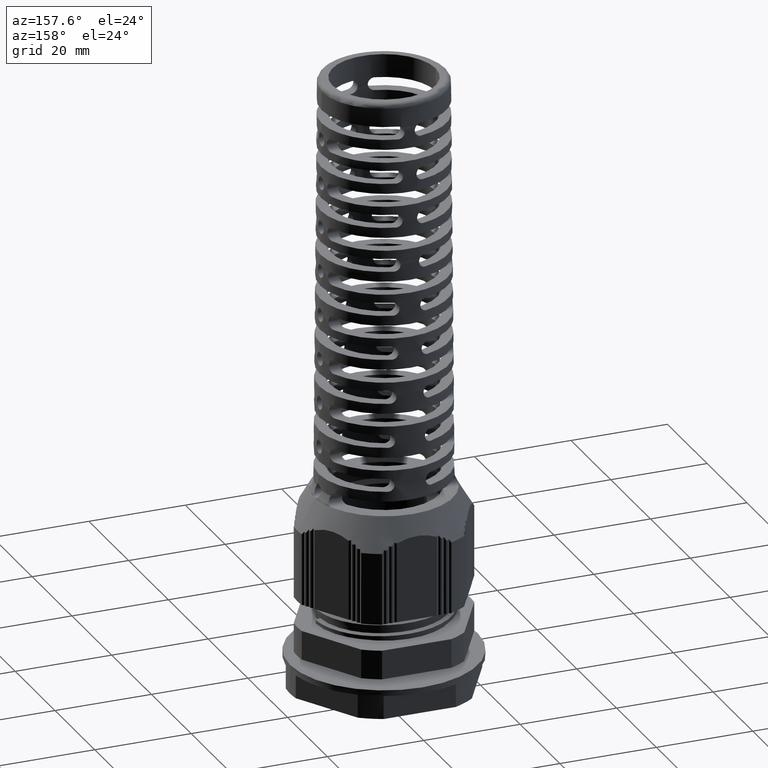
[diagram: clean part render]
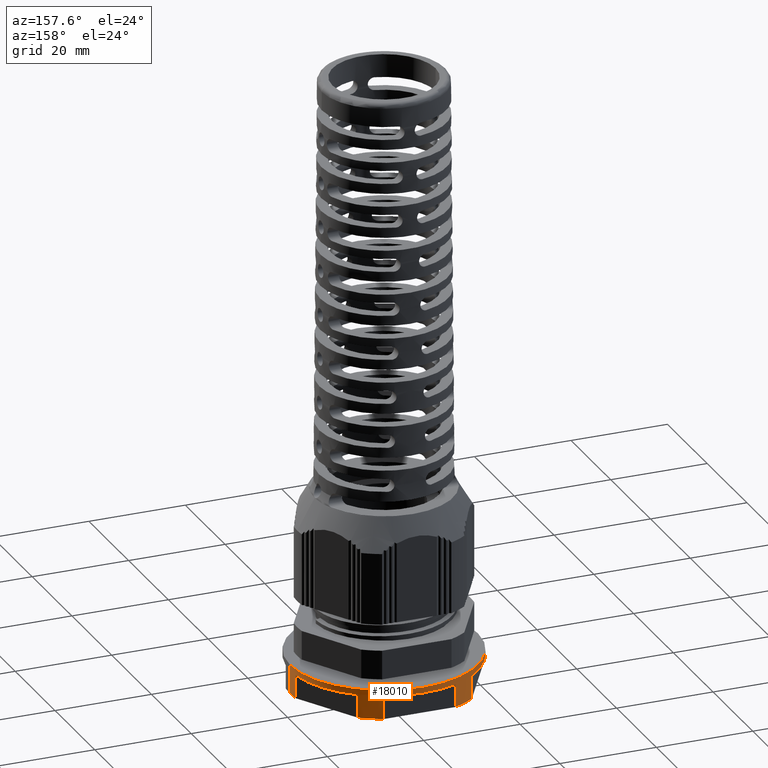
[diagram: same view with one face highlighted and labeled with its STEP entity id]
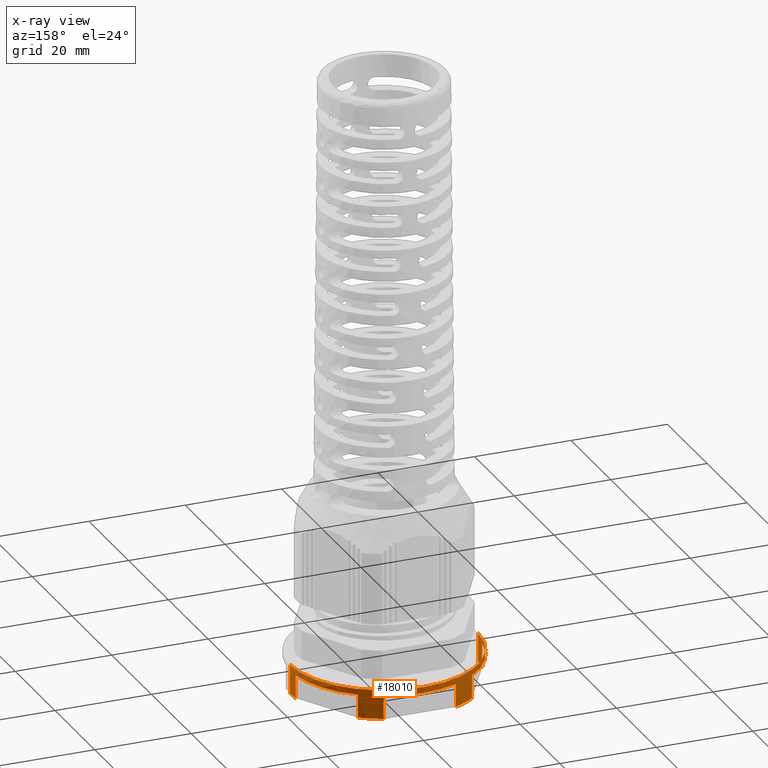
[diagram: x-ray of the same camera — body ghosted, the highlighted face saturated]
A machine part, auxiliary view. The second image highlights one B-rep face of the part: STEP entity #18010.
The next image is the same camera in x-ray: the body ghosted, the highlighted face saturated — about 0% of this face is hidden behind the body in this view.
In plain terms, the highlighted cylindrical surface (partial cylindrical patch) has radius 19.5 mm, axis along (0, 0, 1).
Its self-contained STEP definition (entity closure, byte-faithful):
#3773 = EDGE_LOOP ( 'NONE', ( #7299, #7276, #7327, #7319, #7297, #7293, #7322, #7292, #7284, #7318, #7260, #7331, #7273, #7268, #7312, #7301 ) ) ;
#6485 = DIRECTION ( 'NONE',  ( 0.0000000000000000000, 0.0000000000000000000, 1.000000000000000000 ) ) ;
#6489 = LINE ( 'NONE', #6490, #26515 ) ;
#6490 = CARTESIAN_POINT ( 'NONE',  ( 7.500000000000327700, 18.00000000000001400, 2.832912421834272300 ) ) ;
#6491 = DIRECTION ( 'NONE',  ( 0.0000000000000000000, 0.0000000000000000000, 1.000000000000000000 ) ) ;
#6508 = DIRECTION ( 'NONE',  ( 0.0000000000000000000, 0.0000000000000000000, 1.000000000000000000 ) ) ;
#6509 = DIRECTION ( 'NONE',  ( 1.000000000000000000, 0.0000000000000000000, 0.0000000000000000000 ) ) ;
#6511 = CARTESIAN_POINT ( 'NONE',  ( 0.0000000000000000000, 0.0000000000000000000, 7.632912421834270800 ) ) ;
#6536 = LINE ( 'NONE', #6537, #26477 ) ;
#6537 = CARTESIAN_POINT ( 'NONE',  ( 19.50000000000001400, 0.0000000000000000000, 2.832912421834272300 ) ) ;
#7102 = VERTEX_POINT ( 'NONE', #14411 ) ;
#7112 = VERTEX_POINT ( 'NONE', #14148 ) ;
#7114 = VERTEX_POINT ( 'NONE', #14149 ) ;
#7117 = VERTEX_POINT ( 'NONE', #14152 ) ;
#7120 = VERTEX_POINT ( 'NONE', #14162 ) ;
#7121 = VERTEX_POINT ( 'NONE', #14155 ) ;
#7126 = VERTEX_POINT ( 'NONE', #14164 ) ;
#7129 = VERTEX_POINT ( 'NONE', #14161 ) ;
#7130 = VERTEX_POINT ( 'NONE', #14165 ) ;
#7133 = VERTEX_POINT ( 'NONE', #14166 ) ;
#7141 = VERTEX_POINT ( 'NONE', #14173 ) ;
#7144 = VERTEX_POINT ( 'NONE', #14170 ) ;
#7145 = VERTEX_POINT ( 'NONE', #14181 ) ;
#7149 = VERTEX_POINT ( 'NONE', #14183 ) ;
#7150 = VERTEX_POINT ( 'NONE', #14205 ) ;
#7159 = VERTEX_POINT ( 'NONE', #14196 ) ;
#7260 = ORIENTED_EDGE ( 'NONE', *, *, #10006, .T. ) ;
#7268 = ORIENTED_EDGE ( 'NONE', *, *, #10009, .T. ) ;
#7273 = ORIENTED_EDGE ( 'NONE', *, *, #9974, .T. ) ;
#7276 = ORIENTED_EDGE ( 'NONE', *, *, #9976, .T. ) ;
#7284 = ORIENTED_EDGE ( 'NONE', *, *, #10004, .T. ) ;
#7292 = ORIENTED_EDGE ( 'NONE', *, *, #9967, .T. ) ;
#7293 = ORIENTED_EDGE ( 'NONE', *, *, #9992, .T. ) ;
#7297 = ORIENTED_EDGE ( 'NONE', *, *, #9920, .T. ) ;
#7299 = ORIENTED_EDGE ( 'NONE', *, *, #9897, .T. ) ;
#7301 = ORIENTED_EDGE ( 'NONE', *, *, #9944, .T. ) ;
#7312 = ORIENTED_EDGE ( 'NONE', *, *, #10002, .T. ) ;
#7318 = ORIENTED_EDGE ( 'NONE', *, *, #9931, .T. ) ;
#7319 = ORIENTED_EDGE ( 'NONE', *, *, #9929, .F. ) ;
#7322 = ORIENTED_EDGE ( 'NONE', *, *, #9936, .T. ) ;
#7327 = ORIENTED_EDGE ( 'NONE', *, *, #9917, .F. ) ;
#7331 = ORIENTED_EDGE ( 'NONE', *, *, #9986, .T. ) ;
#8178 = CARTESIAN_POINT ( 'NONE',  ( -19.33845726812007400, 2.504809471616401800, 7.632912421834270800 ) ) ;
#8186 = LINE ( 'NONE', #8178, #26478 ) ;
#8214 = DIRECTION ( 'NONE',  ( -0.0000000000000000000, -0.0000000000000000000, -1.000000000000000000 ) ) ;
#9897 = EDGE_CURVE ( 'NONE', #7112, #7126, #26417, .T. ) ;
#9917 = EDGE_CURVE ( 'NONE', #7121, #7159, #26511, .T. ) ;
#9920 = EDGE_CURVE ( 'NONE', #7130, #7144, #26497, .T. ) ;
#9929 = EDGE_CURVE ( 'NONE', #7130, #7121, #6536, .T. ) ;
#9931 = EDGE_CURVE ( 'NONE', #7150, #7117, #6489, .T. ) ;
#9936 = EDGE_CURVE ( 'NONE', #7149, #7102, #26498, .T. ) ;
#9944 = EDGE_CURVE ( 'NONE', #7141, #7112, #8186, .T. ) ;
#9967 = EDGE_CURVE ( 'NONE', #7102, #7145, #12628, .T. ) ;
#9974 = EDGE_CURVE ( 'NONE', #7129, #7114, #26599, .T. ) ;
#9976 = EDGE_CURVE ( 'NONE', #7126, #7159, #12655, .T. ) ;
#9986 = EDGE_CURVE ( 'NONE', #7133, #7129, #12797, .T. ) ;
#9992 = EDGE_CURVE ( 'NONE', #7144, #7149, #12826, .T. ) ;
#10002 = EDGE_CURVE ( 'NONE', #7120, #7141, #26563, .T. ) ;
#10004 = EDGE_CURVE ( 'NONE', #7145, #7150, #26573, .T. ) ;
#10006 = EDGE_CURVE ( 'NONE', #7117, #7133, #26578, .T. ) ;
#10009 = EDGE_CURVE ( 'NONE', #7114, #7120, #12993, .T. ) ;
#11289 = CARTESIAN_POINT ( 'NONE',  ( 0.0000000000000000000, 0.0000000000000000000, 2.832912421834272300 ) ) ;
#11332 = DIRECTION ( 'NONE',  ( 1.000000000000000000, 0.0000000000000000000, 0.0000000000000000000 ) ) ;
#11349 = CARTESIAN_POINT ( 'NONE',  ( 0.0000000000000000000, 0.0000000000000000000, 8.832912421834270900 ) ) ;
#11353 = DIRECTION ( 'NONE',  ( 0.0000000000000000000, 0.0000000000000000000, 1.000000000000000000 ) ) ;
#11367 = DIRECTION ( 'NONE',  ( 0.0000000000000000000, 0.0000000000000000000, 1.000000000000000000 ) ) ;
#11372 = DIRECTION ( 'NONE',  ( 1.000000000000000000, 0.0000000000000000000, 0.0000000000000000000 ) ) ;
#12628 = LINE ( 'NONE', #12631, #26535 ) ;
#12631 = CARTESIAN_POINT ( 'NONE',  ( 11.83845726811970200, 15.49519052838361500, 7.632912421834270800 ) ) ;
#12647 = DIRECTION ( 'NONE',  ( -0.0000000000000000000, -0.0000000000000000000, -1.000000000000000000 ) ) ;
#12655 = LINE ( 'NONE', #12675, #26561 ) ;
#12659 = DIRECTION ( 'NONE',  ( 1.000000000000000000, 0.0000000000000000000, 0.0000000000000000000 ) ) ;
#12660 = DIRECTION ( 'NONE',  ( 0.0000000000000000000, 0.0000000000000000000, 1.000000000000000000 ) ) ;
#12661 = CARTESIAN_POINT ( 'NONE',  ( 0.0000000000000000000, 0.0000000000000000000, 2.832912421834272300 ) ) ;
#12675 = CARTESIAN_POINT ( 'NONE',  ( -19.50000000000001400, 2.388061258337340500E-015, 2.832912421834272300 ) ) ;
#12724 = DIRECTION ( 'NONE',  ( 0.0000000000000000000, 0.0000000000000000000, 1.000000000000000000 ) ) ;
#12790 = DIRECTION ( 'NONE',  ( -0.0000000000000000000, -0.0000000000000000000, -1.000000000000000000 ) ) ;
#12797 = LINE ( 'NONE', #12805, #26571 ) ;
#12805 = CARTESIAN_POINT ( 'NONE',  ( -7.500000000000330400, 18.00000000000001400, 7.632912421834270800 ) ) ;
#12819 = CARTESIAN_POINT ( 'NONE',  ( 19.33845726812008100, 2.504809471616381800, 2.832912421834272300 ) ) ;
#12820 = DIRECTION ( 'NONE',  ( 0.0000000000000000000, 0.0000000000000000000, 1.000000000000000000 ) ) ;
#12826 = LINE ( 'NONE', #12819, #26564 ) ;
#12871 = CARTESIAN_POINT ( 'NONE',  ( 0.0000000000000000000, 0.0000000000000000000, 7.632912421834270800 ) ) ;
#12873 = CARTESIAN_POINT ( 'NONE',  ( 0.0000000000000000000, 0.0000000000000000000, 2.832912421834272300 ) ) ;
#12877 = CARTESIAN_POINT ( 'NONE',  ( 0.0000000000000000000, 0.0000000000000000000, 7.632912421834270800 ) ) ;
#12880 = DIRECTION ( 'NONE',  ( 0.0000000000000000000, 0.0000000000000000000, 1.000000000000000000 ) ) ;
#12882 = DIRECTION ( 'NONE',  ( 0.0000000000000000000, 0.0000000000000000000, 1.000000000000000000 ) ) ;
#12888 = DIRECTION ( 'NONE',  ( 1.000000000000000000, 0.0000000000000000000, 0.0000000000000000000 ) ) ;
#12889 = DIRECTION ( 'NONE',  ( 1.000000000000000000, 0.0000000000000000000, 0.0000000000000000000 ) ) ;
#12891 = DIRECTION ( 'NONE',  ( 1.000000000000000000, 0.0000000000000000000, 0.0000000000000000000 ) ) ;
#12892 = DIRECTION ( 'NONE',  ( 0.0000000000000000000, 0.0000000000000000000, 1.000000000000000000 ) ) ;
#12985 = CARTESIAN_POINT ( 'NONE',  ( -11.83845726811971100, 15.49519052838361000, 2.832912421834272300 ) ) ;
#12988 = DIRECTION ( 'NONE',  ( 0.0000000000000000000, 0.0000000000000000000, 1.000000000000000000 ) ) ;
#12993 = LINE ( 'NONE', #12985, #25842 ) ;
#14148 = CARTESIAN_POINT ( 'NONE',  ( -19.33845726812007400, 2.504809471616402200, 2.832912421834272300 ) ) ;
#14149 = CARTESIAN_POINT ( 'NONE',  ( -11.83845726811971100, 15.49519052838361000, 2.832912421834272300 ) ) ;
#14152 = CARTESIAN_POINT ( 'NONE',  ( 7.500000000000327700, 18.00000000000001400, 7.632912421834270800 ) ) ;
#14155 = CARTESIAN_POINT ( 'NONE',  ( 19.50000000000001400, 0.0000000000000000000, 8.832912421834270900 ) ) ;
#14161 = CARTESIAN_POINT ( 'NONE',  ( -7.500000000000330400, 18.00000000000001400, 2.832912421834272300 ) ) ;
#14162 = CARTESIAN_POINT ( 'NONE',  ( -11.83845726811971300, 15.49519052838360800, 7.632912421834270800 ) ) ;
#14164 = CARTESIAN_POINT ( 'NONE',  ( -19.50000000000001400, 2.388061258337340500E-015, 2.832912421834272300 ) ) ;
#14165 = CARTESIAN_POINT ( 'NONE',  ( 19.50000000000001400, 0.0000000000000000000, 2.832912421834272300 ) ) ;
#14166 = CARTESIAN_POINT ( 'NONE',  ( -7.500000000000330400, 18.00000000000001400, 7.632912421834270800 ) ) ;
#14170 = CARTESIAN_POINT ( 'NONE',  ( 19.33845726812008100, 2.504809471616381800, 2.832912421834272300 ) ) ;
#14173 = CARTESIAN_POINT ( 'NONE',  ( -19.33845726812007400, 2.504809471616401800, 7.632912421834270800 ) ) ;
#14181 = CARTESIAN_POINT ( 'NONE',  ( 11.83845726811970200, 15.49519052838361500, 2.832912421834272300 ) ) ;
#14183 = CARTESIAN_POINT ( 'NONE',  ( 19.33845726812008100, 2.504809471616381300, 7.632912421834270800 ) ) ;
#14196 = CARTESIAN_POINT ( 'NONE',  ( -19.50000000000001400, 2.388061258337340500E-015, 8.832912421834270900 ) ) ;
#14205 = CARTESIAN_POINT ( 'NONE',  ( 7.500000000000327700, 18.00000000000001400, 2.832912421834272300 ) ) ;
#14411 = CARTESIAN_POINT ( 'NONE',  ( 11.83845726811970200, 15.49519052838361500, 7.632912421834270800 ) ) ;
#15505 = AXIS2_PLACEMENT_3D ( 'NONE', #24331, #24368, #24338 ) ;
#18010 = ADVANCED_FACE ( 'NONE', ( #24396 ), #24405, .T. ) ;
#24331 = CARTESIAN_POINT ( 'NONE',  ( 0.0000000000000000000, 0.0000000000000000000, 2.832912421834272300 ) ) ;
#24338 = DIRECTION ( 'NONE',  ( 1.000000000000000000, 0.0000000000000000000, 0.0000000000000000000 ) ) ;
#24368 = DIRECTION ( 'NONE',  ( 0.0000000000000000000, 0.0000000000000000000, 1.000000000000000000 ) ) ;
#24396 = FACE_OUTER_BOUND ( 'NONE', #3773, .T. ) ;
#24405 = CYLINDRICAL_SURFACE ( 'NONE', #15505, 19.50000000000001400 ) ;
#25842 = VECTOR ( 'NONE', #12988, 1000.000000000000000 ) ;
#25846 = AXIS2_PLACEMENT_3D ( 'NONE', #12877, #12882, #12891 ) ;
#26417 = CIRCLE ( 'NONE', #26429, 19.50000000000001400 ) ;
#26429 = AXIS2_PLACEMENT_3D ( 'NONE', #28056, #28054, #28061 ) ;
#26475 = AXIS2_PLACEMENT_3D ( 'NONE', #11289, #11353, #11332 ) ;
#26477 = VECTOR ( 'NONE', #6485, 1000.000000000000000 ) ;
#26478 = VECTOR ( 'NONE', #8214, 1000.000000000000000 ) ;
#26483 = AXIS2_PLACEMENT_3D ( 'NONE', #6511, #6508, #6509 ) ;
#26489 = AXIS2_PLACEMENT_3D ( 'NONE', #11349, #11367, #11372 ) ;
#26497 = CIRCLE ( 'NONE', #26475, 19.50000000000001400 ) ;
#26498 = CIRCLE ( 'NONE', #26483, 19.50000000000001400 ) ;
#26511 = CIRCLE ( 'NONE', #26489, 19.50000000000001400 ) ;
#26515 = VECTOR ( 'NONE', #6491, 1000.000000000000000 ) ;
#26535 = VECTOR ( 'NONE', #12647, 1000.000000000000000 ) ;
#26561 = VECTOR ( 'NONE', #12724, 1000.000000000000000 ) ;
#26563 = CIRCLE ( 'NONE', #26588, 19.50000000000001400 ) ;
#26564 = VECTOR ( 'NONE', #12820, 1000.000000000000000 ) ;
#26570 = AXIS2_PLACEMENT_3D ( 'NONE', #12661, #12660, #12659 ) ;
#26571 = VECTOR ( 'NONE', #12790, 1000.000000000000000 ) ;
#26573 = CIRCLE ( 'NONE', #26575, 19.50000000000001400 ) ;
#26575 = AXIS2_PLACEMENT_3D ( 'NONE', #12873, #12892, #12889 ) ;
#26578 = CIRCLE ( 'NONE', #25846, 19.50000000000001400 ) ;
#26588 = AXIS2_PLACEMENT_3D ( 'NONE', #12871, #12880, #12888 ) ;
#26599 = CIRCLE ( 'NONE', #26570, 19.50000000000001400 ) ;
#28054 = DIRECTION ( 'NONE',  ( 0.0000000000000000000, 0.0000000000000000000, 1.000000000000000000 ) ) ;
#28056 = CARTESIAN_POINT ( 'NONE',  ( 0.0000000000000000000, 0.0000000000000000000, 2.832912421834272300 ) ) ;
#28061 = DIRECTION ( 'NONE',  ( 1.000000000000000000, 0.0000000000000000000, 0.0000000000000000000 ) ) ;